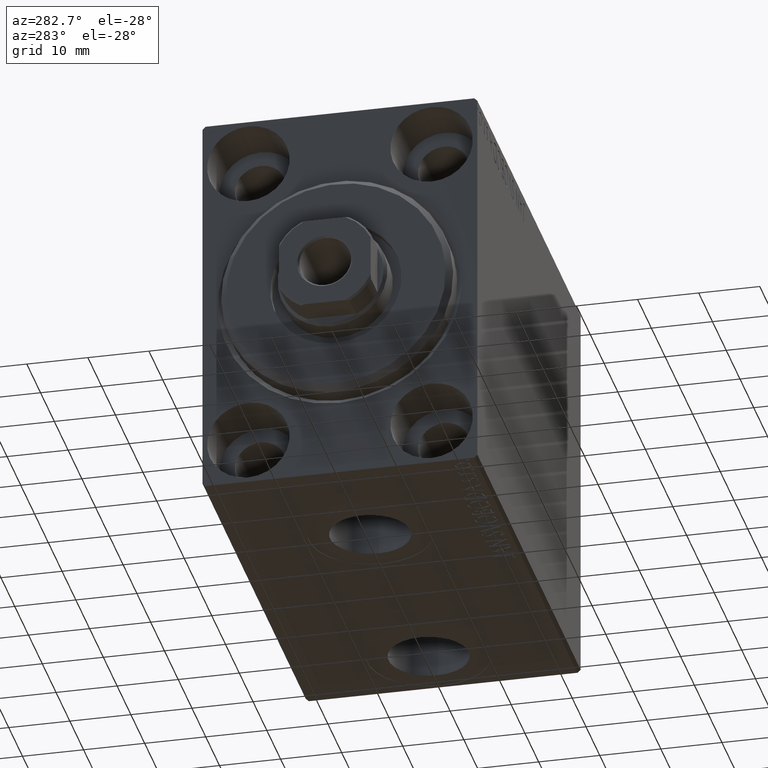
[diagram: clean part render]
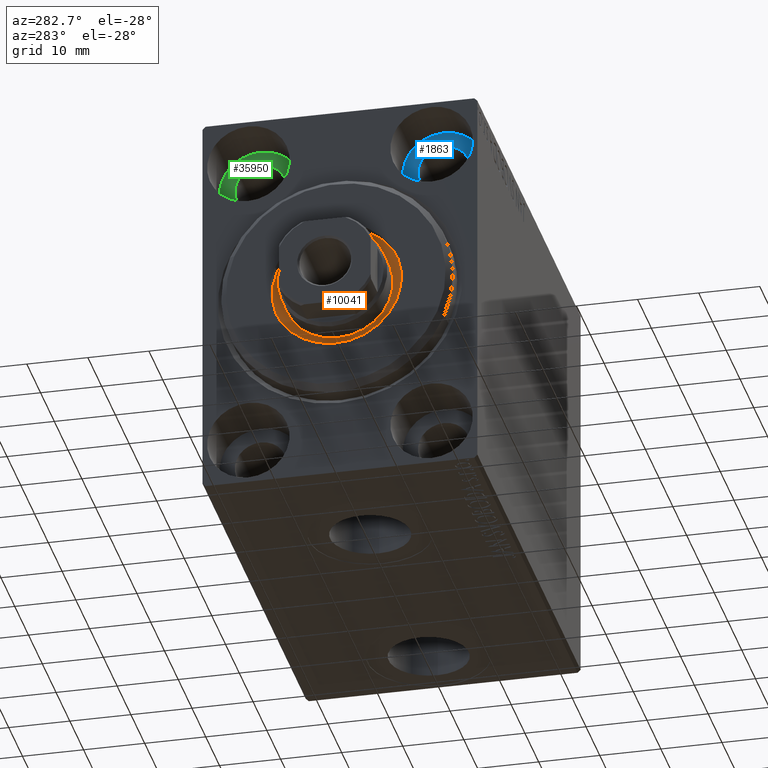
[diagram: same view with three faces highlighted in distinct colors, each labeled with its STEP entity id]
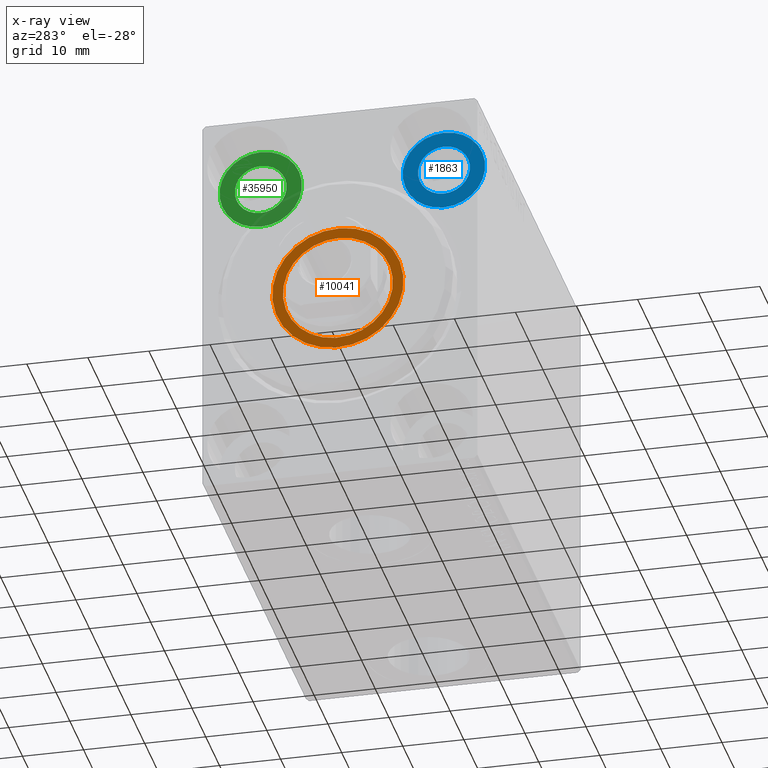
[diagram: x-ray of the same camera — body ghosted, the three highlighted faces saturated]
A machine part, auxiliary view with three faces highlighted in distinct colors.
The next image is the same camera in x-ray (body ghosted, the three faces saturated) — at least one of them is partly hidden behind the body in this view.
Their STEP definitions:

[orange] entity #10041 — the highlighted planar face has unit normal (-1, 0, 0).
#3712 = ORIENTED_EDGE ( 'NONE', *, *, #25019, .F. ) ;
#6011 = AXIS2_PLACEMENT_3D ( 'NONE', #23991, #18845, #11941 ) ;
#6961 = EDGE_LOOP ( 'NONE', ( #12362, #3712 ) ) ;
#6983 = DIRECTION ( 'NONE',  ( 0.000000000000000000, 0.000000000000000000, -1.000000000000000000 ) ) ;
#7208 = DIRECTION ( 'NONE',  ( 0.000000000000000000, 0.000000000000000000, -1.000000000000000000 ) ) ;
#7586 = VERTEX_POINT ( 'NONE', #26544 ) ;
#10013 = CARTESIAN_POINT ( 'NONE',  ( 1.499999999999999556, 0.000000000000000000, -9.000000000000000000 ) ) ;
#10041 = ADVANCED_FACE ( 'NONE', ( #32198, #18170 ), #24874, .T. ) ;
#10067 = AXIS2_PLACEMENT_3D ( 'NONE', #25365, #42055, #35591 ) ;
#10088 = DIRECTION ( 'NONE',  ( 1.000000000000000000, 0.000000000000000000, 0.000000000000000000 ) ) ;
#10533 = ORIENTED_EDGE ( 'NONE', *, *, #41926, .T. ) ;
#11893 = VERTEX_POINT ( 'NONE', #19507 ) ;
#11941 = DIRECTION ( 'NONE',  ( 0.000000000000000000, 0.000000000000000000, -1.000000000000000000 ) ) ;
#12362 = ORIENTED_EDGE ( 'NONE', *, *, #36983, .F. ) ;
#13200 = CARTESIAN_POINT ( 'NONE',  ( 1.499999999999999556, 0.000000000000000000, 0.000000000000000000 ) ) ;
#13663 = VERTEX_POINT ( 'NONE', #18373 ) ;
#13865 = CARTESIAN_POINT ( 'NONE',  ( 1.500000000000000000, 0.000000000000000000, 0.000000000000000000 ) ) ;
#14394 = CARTESIAN_POINT ( 'NONE',  ( 1.500000000000000000, 0.000000000000000000, 0.000000000000000000 ) ) ;
#14744 = DIRECTION ( 'NONE',  ( 1.000000000000000000, 0.000000000000000000, 0.000000000000000000 ) ) ;
#14826 = DIRECTION ( 'NONE',  ( 0.000000000000000000, 0.000000000000000000, -1.000000000000000000 ) ) ;
#15457 = VERTEX_POINT ( 'NONE', #10013 ) ;
#17740 = DIRECTION ( 'NONE',  ( 1.000000000000000000, 0.000000000000000000, 0.000000000000000000 ) ) ;
#18170 = FACE_OUTER_BOUND ( 'NONE', #36281, .T. ) ;
#18373 = CARTESIAN_POINT ( 'NONE',  ( 1.500000000000000000, 0.000000000000000000, 10.75000000000000000 ) ) ;
#18845 = DIRECTION ( 'NONE',  ( 1.000000000000000000, 0.000000000000000000, 0.000000000000000000 ) ) ;
#19507 = CARTESIAN_POINT ( 'NONE',  ( 1.500000000000000000, 1.316495309083404223E-15, -10.75000000000000000 ) ) ;
#20059 = CIRCLE ( 'NONE', #35010, 9.000000000000000000 ) ;
#21095 = AXIS2_PLACEMENT_3D ( 'NONE', #14394, #17740, #14826 ) ;
#23991 = CARTESIAN_POINT ( 'NONE',  ( 1.500000000000000000, 0.000000000000000000, 0.000000000000000000 ) ) ;
#24472 = CIRCLE ( 'NONE', #6011, 10.75000000000000000 ) ;
#24874 = PLANE ( 'NONE',  #21095 ) ;
#25019 = EDGE_CURVE ( 'NONE', #7586, #15457, #37082, .T. ) ;
#25365 = CARTESIAN_POINT ( 'NONE',  ( 1.499999999999999556, 0.000000000000000000, 0.000000000000000000 ) ) ;
#26544 = CARTESIAN_POINT ( 'NONE',  ( 1.499999999999999556, 1.102182119232617517E-15, 9.000000000000000000 ) ) ;
#29290 = CIRCLE ( 'NONE', #34287, 10.75000000000000000 ) ;
#31169 = EDGE_CURVE ( 'NONE', #11893, #13663, #29290, .T. ) ;
#32198 = FACE_BOUND ( 'NONE', #6961, .T. ) ;
#34287 = AXIS2_PLACEMENT_3D ( 'NONE', #13865, #14744, #6983 ) ;
#35010 = AXIS2_PLACEMENT_3D ( 'NONE', #13200, #10088, #7208 ) ;
#35591 = DIRECTION ( 'NONE',  ( 0.000000000000000000, 0.000000000000000000, -1.000000000000000000 ) ) ;
#36281 = EDGE_LOOP ( 'NONE', ( #10533, #39953 ) ) ;
#36983 = EDGE_CURVE ( 'NONE', #15457, #7586, #20059, .T. ) ;
#37082 = CIRCLE ( 'NONE', #10067, 9.000000000000000000 ) ;
#39953 = ORIENTED_EDGE ( 'NONE', *, *, #31169, .T. ) ;
#41926 = EDGE_CURVE ( 'NONE', #13663, #11893, #24472, .T. ) ;
#42055 = DIRECTION ( 'NONE',  ( 1.000000000000000000, 0.000000000000000000, 0.000000000000000000 ) ) ;

[blue] entity #1863 — the highlighted planar face has unit normal (-1, 0, 0).
#1155 = DIRECTION ( 'NONE',  ( 0.000000000000000000, 0.000000000000000000, 1.000000000000000000 ) ) ;
#1428 = EDGE_CURVE ( 'NONE', #23954, #14178, #42925, .T. ) ;
#1863 = ADVANCED_FACE ( 'NONE', ( #34341, #3858 ), #38131, .T. ) ;
#3628 = CARTESIAN_POINT ( 'NONE',  ( 9.000000000000000000, 0.000000000000000000, 0.000000000000000000 ) ) ;
#3858 = FACE_OUTER_BOUND ( 'NONE', #16169, .T. ) ;
#3976 = DIRECTION ( 'NONE',  ( -1.000000000000000000, 0.000000000000000000, 0.000000000000000000 ) ) ;
#4289 = VERTEX_POINT ( 'NONE', #31811 ) ;
#5046 = ORIENTED_EDGE ( 'NONE', *, *, #6878, .F. ) ;
#5847 = CARTESIAN_POINT ( 'NONE',  ( 8.999999999999994671, -14.99999999999999645, 20.75000000000000355 ) ) ;
#6878 = EDGE_CURVE ( 'NONE', #20625, #4289, #23160, .T. ) ;
#6968 = DIRECTION ( 'NONE',  ( -1.000000000000000000, 0.000000000000000000, 0.000000000000000000 ) ) ;
#7593 = DIRECTION ( 'NONE',  ( 0.000000000000000000, 0.000000000000000000, 1.000000000000000000 ) ) ;
#10945 = AXIS2_PLACEMENT_3D ( 'NONE', #3628, #6968, #17406 ) ;
#13900 = AXIS2_PLACEMENT_3D ( 'NONE', #28080, #35850, #1155 ) ;
#14111 = AXIS2_PLACEMENT_3D ( 'NONE', #37413, #24511, #7593 ) ;
#14178 = VERTEX_POINT ( 'NONE', #32126 ) ;
#16169 = EDGE_LOOP ( 'NONE', ( #17309, #35411 ) ) ;
#16635 = DIRECTION ( 'NONE',  ( 0.000000000000000000, 0.000000000000000000, 1.000000000000000000 ) ) ;
#17309 = ORIENTED_EDGE ( 'NONE', *, *, #23226, .T. ) ;
#17406 = DIRECTION ( 'NONE',  ( 0.000000000000000000, 0.000000000000000000, 1.000000000000000000 ) ) ;
#18596 = CARTESIAN_POINT ( 'NONE',  ( 9.000000000000000000, -14.99999999999999645, 25.00000000000000000 ) ) ;
#19536 = EDGE_CURVE ( 'NONE', #4289, #20625, #41871, .T. ) ;
#20625 = VERTEX_POINT ( 'NONE', #5847 ) ;
#23160 = CIRCLE ( 'NONE', #13900, 4.249999999999996447 ) ;
#23226 = EDGE_CURVE ( 'NONE', #14178, #23954, #29916, .T. ) ;
#23774 = CARTESIAN_POINT ( 'NONE',  ( 9.000000000000000000, -14.99999999999999645, 25.00000000000000000 ) ) ;
#23954 = VERTEX_POINT ( 'NONE', #29561 ) ;
#24511 = DIRECTION ( 'NONE',  ( -1.000000000000000000, 0.000000000000000000, 0.000000000000000000 ) ) ;
#25955 = DIRECTION ( 'NONE',  ( 0.000000000000000000, 0.000000000000000000, 1.000000000000000000 ) ) ;
#28080 = CARTESIAN_POINT ( 'NONE',  ( 8.999999999999994671, -14.99999999999999645, 25.00000000000000000 ) ) ;
#29561 = CARTESIAN_POINT ( 'NONE',  ( 9.000000000000000000, -14.99999999999999645, 18.25000000000000355 ) ) ;
#29916 = CIRCLE ( 'NONE', #34186, 6.749999999999999112 ) ;
#31811 = CARTESIAN_POINT ( 'NONE',  ( 8.999999999999994671, -14.99999999999999645, 29.25000000000000000 ) ) ;
#32126 = CARTESIAN_POINT ( 'NONE',  ( 9.000000000000000000, -14.99999999999999645, 31.75000000000000000 ) ) ;
#34186 = AXIS2_PLACEMENT_3D ( 'NONE', #18596, #35742, #25955 ) ;
#34341 = FACE_BOUND ( 'NONE', #42145, .T. ) ;
#35411 = ORIENTED_EDGE ( 'NONE', *, *, #1428, .T. ) ;
#35715 = ORIENTED_EDGE ( 'NONE', *, *, #19536, .F. ) ;
#35742 = DIRECTION ( 'NONE',  ( -1.000000000000000000, 0.000000000000000000, 0.000000000000000000 ) ) ;
#35850 = DIRECTION ( 'NONE',  ( -1.000000000000000000, 0.000000000000000000, 0.000000000000000000 ) ) ;
#37413 = CARTESIAN_POINT ( 'NONE',  ( 8.999999999999994671, -14.99999999999999645, 25.00000000000000000 ) ) ;
#38131 = PLANE ( 'NONE',  #10945 ) ;
#40791 = AXIS2_PLACEMENT_3D ( 'NONE', #23774, #3976, #16635 ) ;
#41871 = CIRCLE ( 'NONE', #14111, 4.249999999999996447 ) ;
#42145 = EDGE_LOOP ( 'NONE', ( #35715, #5046 ) ) ;
#42925 = CIRCLE ( 'NONE', #40791, 6.749999999999999112 ) ;

[green] entity #35950 — the highlighted planar face has unit normal (-1, 0, 0).
#625 = EDGE_CURVE ( 'NONE', #28452, #38298, #19443, .T. ) ;
#2098 = DIRECTION ( 'NONE',  ( 0.000000000000000000, 0.000000000000000000, 1.000000000000000000 ) ) ;
#2150 = FACE_OUTER_BOUND ( 'NONE', #42082, .T. ) ;
#5945 = AXIS2_PLACEMENT_3D ( 'NONE', #34858, #24849, #11265 ) ;
#7981 = AXIS2_PLACEMENT_3D ( 'NONE', #12384, #26197, #25979 ) ;
#8265 = CARTESIAN_POINT ( 'NONE',  ( 8.999999999999994671, 15.00000000000000355, 29.25000000000000000 ) ) ;
#8932 = VERTEX_POINT ( 'NONE', #41994 ) ;
#9589 = EDGE_CURVE ( 'NONE', #22646, #8932, #22528, .T. ) ;
#11265 = DIRECTION ( 'NONE',  ( 0.000000000000000000, 0.000000000000000000, 1.000000000000000000 ) ) ;
#12384 = CARTESIAN_POINT ( 'NONE',  ( 9.000000000000000000, 0.000000000000000000, 0.000000000000000000 ) ) ;
#14037 = ORIENTED_EDGE ( 'NONE', *, *, #40149, .F. ) ;
#17919 = EDGE_CURVE ( 'NONE', #38298, #28452, #41071, .T. ) ;
#19443 = CIRCLE ( 'NONE', #5945, 6.749999999999999112 ) ;
#19484 = ORIENTED_EDGE ( 'NONE', *, *, #9589, .F. ) ;
#20304 = CARTESIAN_POINT ( 'NONE',  ( 8.999999999999994671, 15.00000000000000355, 25.00000000000000000 ) ) ;
#20345 = AXIS2_PLACEMENT_3D ( 'NONE', #20304, #33881, #34107 ) ;
#22311 = AXIS2_PLACEMENT_3D ( 'NONE', #24202, #34209, #27975 ) ;
#22528 = CIRCLE ( 'NONE', #20345, 4.249999999999996447 ) ;
#22646 = VERTEX_POINT ( 'NONE', #8265 ) ;
#22972 = ORIENTED_EDGE ( 'NONE', *, *, #17919, .T. ) ;
#23912 = ORIENTED_EDGE ( 'NONE', *, *, #625, .T. ) ;
#24202 = CARTESIAN_POINT ( 'NONE',  ( 8.999999999999994671, 15.00000000000000355, 25.00000000000000000 ) ) ;
#24756 = AXIS2_PLACEMENT_3D ( 'NONE', #31929, #38827, #2098 ) ;
#24849 = DIRECTION ( 'NONE',  ( -1.000000000000000000, 0.000000000000000000, 0.000000000000000000 ) ) ;
#25979 = DIRECTION ( 'NONE',  ( 0.000000000000000000, 0.000000000000000000, 1.000000000000000000 ) ) ;
#26197 = DIRECTION ( 'NONE',  ( -1.000000000000000000, 0.000000000000000000, 0.000000000000000000 ) ) ;
#27975 = DIRECTION ( 'NONE',  ( 0.000000000000000000, 0.000000000000000000, 1.000000000000000000 ) ) ;
#28452 = VERTEX_POINT ( 'NONE', #42542 ) ;
#31929 = CARTESIAN_POINT ( 'NONE',  ( 9.000000000000000000, 15.00000000000000355, 25.00000000000000000 ) ) ;
#33881 = DIRECTION ( 'NONE',  ( -1.000000000000000000, 0.000000000000000000, 0.000000000000000000 ) ) ;
#34107 = DIRECTION ( 'NONE',  ( 0.000000000000000000, 0.000000000000000000, 1.000000000000000000 ) ) ;
#34209 = DIRECTION ( 'NONE',  ( -1.000000000000000000, 0.000000000000000000, 0.000000000000000000 ) ) ;
#34858 = CARTESIAN_POINT ( 'NONE',  ( 9.000000000000000000, 15.00000000000000355, 25.00000000000000000 ) ) ;
#35950 = ADVANCED_FACE ( 'NONE', ( #43102, #2150 ), #43529, .T. ) ;
#36048 = CARTESIAN_POINT ( 'NONE',  ( 9.000000000000000000, 15.00000000000000355, 18.25000000000000355 ) ) ;
#36543 = CIRCLE ( 'NONE', #22311, 4.249999999999996447 ) ;
#36744 = EDGE_LOOP ( 'NONE', ( #19484, #14037 ) ) ;
#38298 = VERTEX_POINT ( 'NONE', #36048 ) ;
#38827 = DIRECTION ( 'NONE',  ( -1.000000000000000000, 0.000000000000000000, 0.000000000000000000 ) ) ;
#40149 = EDGE_CURVE ( 'NONE', #8932, #22646, #36543, .T. ) ;
#41071 = CIRCLE ( 'NONE', #24756, 6.749999999999999112 ) ;
#41994 = CARTESIAN_POINT ( 'NONE',  ( 8.999999999999994671, 15.00000000000000355, 20.75000000000000355 ) ) ;
#42082 = EDGE_LOOP ( 'NONE', ( #23912, #22972 ) ) ;
#42542 = CARTESIAN_POINT ( 'NONE',  ( 9.000000000000000000, 15.00000000000000355, 31.75000000000000000 ) ) ;
#43102 = FACE_BOUND ( 'NONE', #36744, .T. ) ;
#43529 = PLANE ( 'NONE',  #7981 ) ;